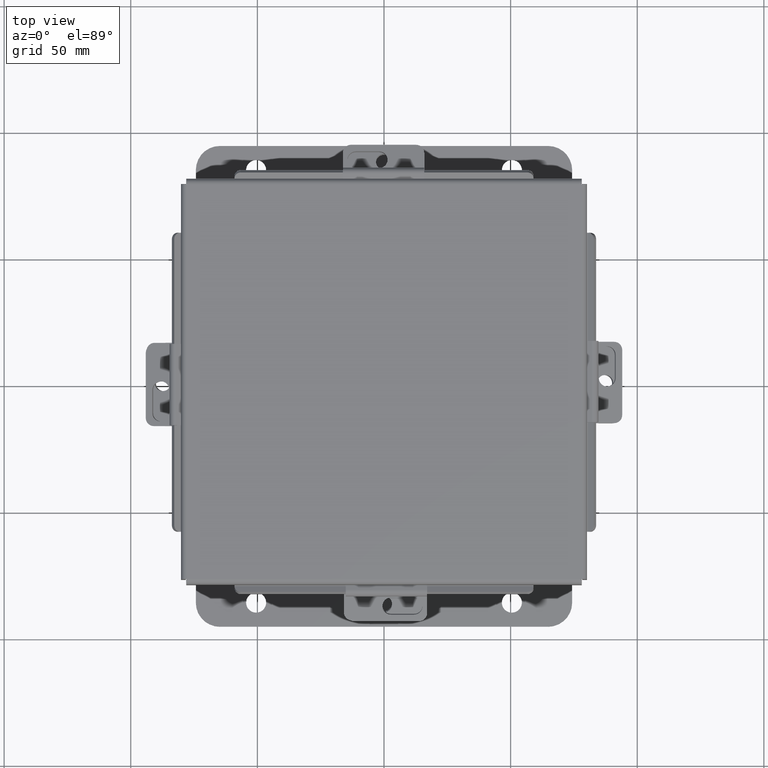
[diagram: clean part render]
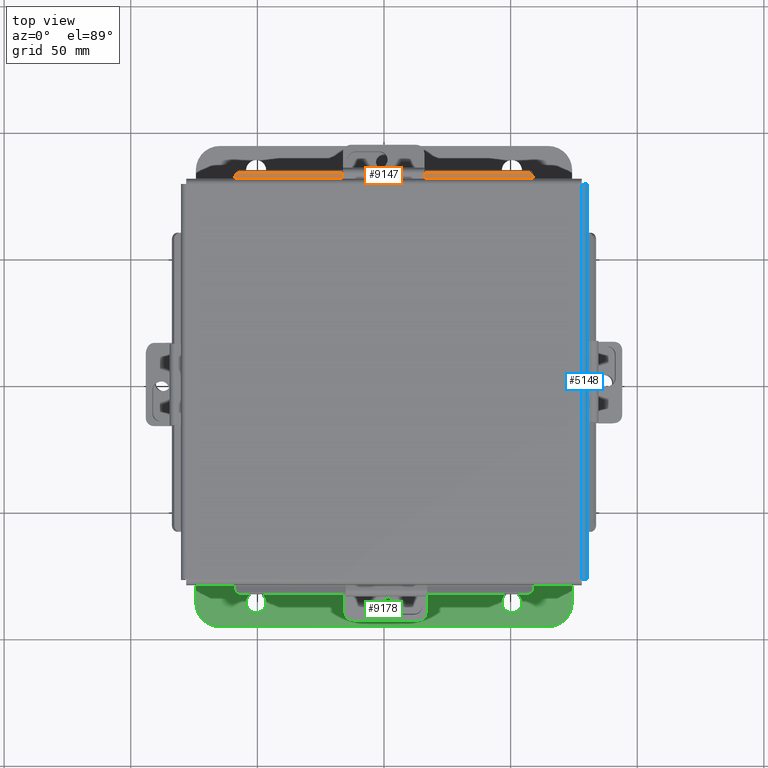
[diagram: same view with three faces highlighted in distinct colors, each labeled with its STEP entity id]
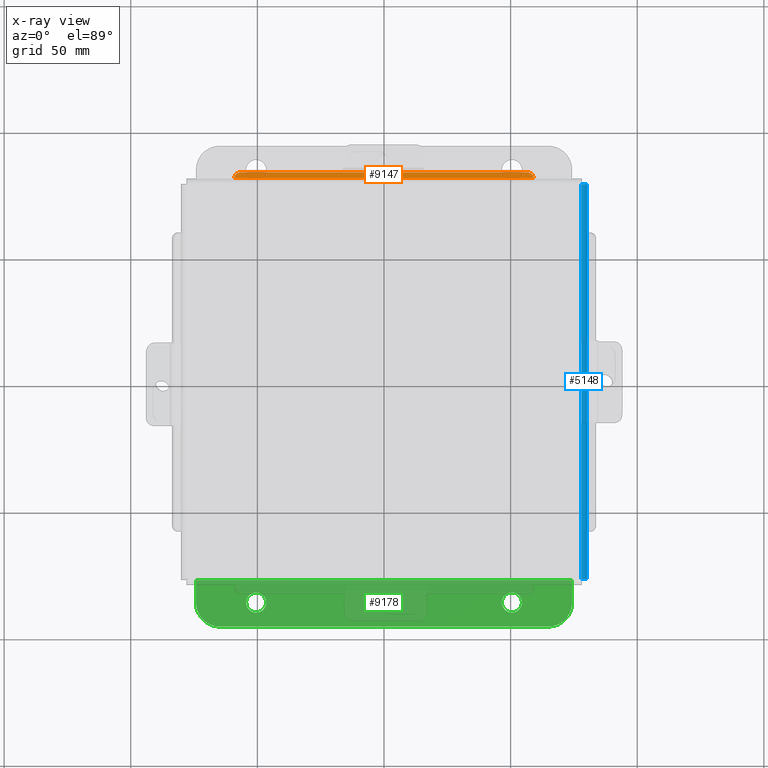
[diagram: x-ray of the same camera — body ghosted, the three highlighted faces saturated]
A machine part, top view with three faces highlighted in distinct colors.
The next image is the same camera in x-ray (body ghosted, the three faces saturated) — at least one of them is partly hidden behind the body in this view.
Their STEP definitions:

[orange] entity #9147 — the highlighted planar face has unit normal (-0, -0.5, 0.866).
#53 = LINE ( 'NONE', #1235, #7917 ) ;
#381 = VECTOR ( 'NONE', #2809, 39.37007874015748900 ) ;
#634 = ORIENTED_EDGE ( 'NONE', *, *, #4757, .F. ) ;
#860 = LINE ( 'NONE', #5837, #3163 ) ;
#1015 = CARTESIAN_POINT ( 'NONE',  ( -2.544671805411940700E-017, 1.000069589632083000, 1.732171340347319600 ) ) ;
#1133 = DIRECTION ( 'NONE',  ( 1.272247367479751900E-017, -0.5000000000000012200, -0.8660254037844379300 ) ) ;
#1235 = CARTESIAN_POINT ( 'NONE',  ( -2.324478932188136100, 3.260706350946111600, 0.4269920976626972500 ) ) ;
#1372 = AXIS2_PLACEMENT_3D ( 'NONE', #1015, #6924, #7681 ) ;
#1393 = ORIENTED_EDGE ( 'NONE', *, *, #2066, .F. ) ;
#1460 = ORIENTED_EDGE ( 'NONE', *, *, #8056, .T. ) ;
#1801 = CARTESIAN_POINT ( 'NONE',  ( 2.324478932188135200, 3.260706350946111600, 0.4269920976626973000 ) ) ;
#2013 = LINE ( 'NONE', #9194, #7453 ) ;
#2032 = ORIENTED_EDGE ( 'NONE', *, *, #6490, .T. ) ;
#2066 = EDGE_CURVE ( 'NONE', #5074, #3168, #53, .T. ) ;
#2151 = DIRECTION ( 'NONE',  ( 1.000000000000000000, -1.175251776144364900E-016, 1.175251776144364900E-016 ) ) ;
#2725 = DIRECTION ( 'NONE',  ( 0.0000000000000000000, 0.8660254037844372600, -0.5000000000000023300 ) ) ;
#2809 = DIRECTION ( 'NONE',  ( -0.0000000000000000000, 0.8660254037844373800, -0.5000000000000023300 ) ) ;
#2970 = DIRECTION ( 'NONE',  ( 1.272247367479751900E-017, -0.5000000000000012200, -0.8660254037844379300 ) ) ;
#3163 = VECTOR ( 'NONE', #7357, 39.37007874015748100 ) ;
#3168 = VERTEX_POINT ( 'NONE', #5859 ) ;
#3180 = VERTEX_POINT ( 'NONE', #5898 ) ;
#3241 = CARTESIAN_POINT ( 'NONE',  ( -2.324478932188136100, 3.174103810567667800, 0.4769920976626972300 ) ) ;
#3950 = CARTESIAN_POINT ( 'NONE',  ( 2.324478932188135200, 3.174103810567667800, 0.4769920976626974600 ) ) ;
#4489 = ORIENTED_EDGE ( 'NONE', *, *, #5218, .F. ) ;
#4625 = EDGE_CURVE ( 'NONE', #7758, #3180, #2013, .T. ) ;
#4757 = EDGE_CURVE ( 'NONE', #3180, #7295, #5810, .T. ) ;
#5074 = VERTEX_POINT ( 'NONE', #6643 ) ;
#5218 = EDGE_CURVE ( 'NONE', #8922, #7758, #860, .T. ) ;
#5226 = DIRECTION ( 'NONE',  ( 0.0000000000000000000, 0.8660254037844372600, -0.5000000000000023300 ) ) ;
#5370 = CARTESIAN_POINT ( 'NONE',  ( -2.324478932188135200, 3.169750000000001800, 0.4795057713659399100 ) ) ;
#5558 = CARTESIAN_POINT ( 'NONE',  ( 2.224478932188135100, 3.174103810567667800, 0.4769920976626972300 ) ) ;
#5797 = PLANE ( 'NONE',  #1372 ) ;
#5810 = LINE ( 'NONE', #1801, #381 ) ;
#5837 = CARTESIAN_POINT ( 'NONE',  ( -2.324478932188136100, 3.156250000000001800, 0.4872999999999999600 ) ) ;
#5859 = CARTESIAN_POINT ( 'NONE',  ( -2.224478932188136400, 3.260706350946111600, 0.4269920976626972500 ) ) ;
#5898 = CARTESIAN_POINT ( 'NONE',  ( 2.324478932188135200, 3.169750000000001800, 0.4795057713659399100 ) ) ;
#5933 = CARTESIAN_POINT ( 'NONE',  ( -2.224478932188136400, 3.174103810567667800, 0.4769920976626972300 ) ) ;
#6345 = FACE_OUTER_BOUND ( 'NONE', #9431, .T. ) ;
#6490 = EDGE_CURVE ( 'NONE', #5074, #7295, #6824, .T. ) ;
#6498 = AXIS2_PLACEMENT_3D ( 'NONE', #5558, #1133, #2725 ) ;
#6643 = CARTESIAN_POINT ( 'NONE',  ( 2.224478932188135100, 3.260706350946111600, 0.4269920976626973000 ) ) ;
#6765 = AXIS2_PLACEMENT_3D ( 'NONE', #5933, #2970, #5226 ) ;
#6824 = CIRCLE ( 'NONE', #6498, 0.09999999999999983900 ) ;
#6924 = DIRECTION ( 'NONE',  ( 1.272247367479751900E-017, -0.5000000000000012200, -0.8660254037844379300 ) ) ;
#7295 = VERTEX_POINT ( 'NONE', #3950 ) ;
#7357 = DIRECTION ( 'NONE',  ( -0.0000000000000000000, -0.8660254037844379300, 0.5000000000000012200 ) ) ;
#7360 = CIRCLE ( 'NONE', #6765, 0.09999999999999983900 ) ;
#7453 = VECTOR ( 'NONE', #2151, 39.37007874015748100 ) ;
#7681 = DIRECTION ( 'NONE',  ( 0.0000000000000000000, 0.8660254037844379300, -0.5000000000000012200 ) ) ;
#7758 = VERTEX_POINT ( 'NONE', #5370 ) ;
#7917 = VECTOR ( 'NONE', #9343, 39.37007874015748100 ) ;
#8056 = EDGE_CURVE ( 'NONE', #8922, #3168, #7360, .T. ) ;
#8922 = VERTEX_POINT ( 'NONE', #3241 ) ;
#9147 = ADVANCED_FACE ( 'NONE', ( #6345 ), #5797, .T. ) ;
#9194 = CARTESIAN_POINT ( 'NONE',  ( -2.324478932188136100, 3.169750000000001800, 0.4795057713659400300 ) ) ;
#9343 = DIRECTION ( 'NONE',  ( -1.000000000000000000, -0.0000000000000000000, -1.469064720180456100E-017 ) ) ;
#9431 = EDGE_LOOP ( 'NONE', ( #4489, #1460, #1393, #2032, #634, #9598 ) ) ;
#9598 = ORIENTED_EDGE ( 'NONE', *, *, #4625, .F. ) ;

[blue] entity #5148 — the highlighted cylindrical surface (edge-blend (fillet) strip) has radius 2.2276 mm, axis along (-0, -1, -0).
#173 = DIRECTION ( 'NONE',  ( -0.0000000000000000000, 1.000000000000000000, -0.0000000000000000000 ) ) ;
#192 = CARTESIAN_POINT ( 'NONE',  ( -3.156250000000000400, -3.074478932188135600, 0.01299999999999986400 ) ) ;
#310 = CARTESIAN_POINT ( 'NONE',  ( -3.112717384578527600, -3.070526310729379200, -0.06363106625866842000 ) ) ;
#343 = ORIENTED_EDGE ( 'NONE', *, *, #4305, .T. ) ;
#1138 = VERTEX_POINT ( 'NONE', #8745 ) ;
#1818 = CARTESIAN_POINT ( 'NONE',  ( -3.080029903154992700, 3.069044077682344400, -0.07469999999999994700 ) ) ;
#1950 = CARTESIAN_POINT ( 'NONE',  ( -3.112717384578527600, 3.070526310729377400, -0.06363106625866839200 ) ) ;
#1977 = CARTESIAN_POINT ( 'NONE',  ( -3.068550000000001000, 3.068549999999999700, -0.07469999999999994700 ) ) ;
#2257 = VERTEX_POINT ( 'NONE', #5304 ) ;
#2473 = CARTESIAN_POINT ( 'NONE',  ( -3.156250000000000400, 3.156249999999998700, 0.01299999999999986400 ) ) ;
#2508 = CARTESIAN_POINT ( 'NONE',  ( -3.145181066258668800, -3.072502621458757000, -0.03116738457852794700 ) ) ;
#2537 = LINE ( 'NONE', #6923, #4258 ) ;
#2829 = CARTESIAN_POINT ( 'NONE',  ( -3.156250000000000400, -3.074478932188135600, 0.01299999999999986400 ) ) ;
#3160 = ORIENTED_EDGE ( 'NONE', *, *, #9434, .F. ) ;
#3410 = AXIS2_PLACEMENT_3D ( 'NONE', #4528, #8988, #4501 ) ;
#3630 = VECTOR ( 'NONE', #173, 39.37007874015748100 ) ;
#3725 = CARTESIAN_POINT ( 'NONE',  ( -3.156250000000000400, 3.074478932188135600, 0.01299999999999985900 ) ) ;
#4004 = CARTESIAN_POINT ( 'NONE',  ( -3.122445747341800400, -3.071020388411722200, -0.05713078207832041800 ) ) ;
#4191 = CARTESIAN_POINT ( 'NONE',  ( -3.091505289458309900, 3.069538155364689200, -0.07241740374381124000 ) ) ;
#4258 = VECTOR ( 'NONE', #6487, 39.37007874015748100 ) ;
#4300 = CYLINDRICAL_SURFACE ( 'NONE', #3410, 0.08770000000000026400 ) ;
#4301 = CARTESIAN_POINT ( 'NONE',  ( -3.153967403743812300, 3.073490776823446500, -0.009955289458308985400 ) ) ;
#4305 = EDGE_CURVE ( 'NONE', #5547, #2257, #7315, .T. ) ;
#4501 = DIRECTION ( 'NONE',  ( -1.000000000000000000, 0.0000000000000000000, -3.358350761880586900E-015 ) ) ;
#4528 = CARTESIAN_POINT ( 'NONE',  ( -3.068550000000000100, -3.074478932188135600, 0.01300000000000015000 ) ) ;
#4720 = CARTESIAN_POINT ( 'NONE',  ( -3.091505289458308200, -3.069538155364688800, -0.07241740374381125400 ) ) ;
#4914 = CARTESIAN_POINT ( 'NONE',  ( -3.156250000000000000, -3.073984854505790800, 0.001520096845007165000 ) ) ;
#4972 = ORIENTED_EDGE ( 'NONE', *, *, #5462, .F. ) ;
#5148 = ADVANCED_FACE ( 'NONE', ( #7802 ), #4300, .T. ) ;
#5304 = CARTESIAN_POINT ( 'NONE',  ( -3.156250000000000400, 3.074478932188135600, 0.01299999999999985900 ) ) ;
#5374 = EDGE_LOOP ( 'NONE', ( #3160, #4972, #343, #6398 ) ) ;
#5462 = EDGE_CURVE ( 'NONE', #5547, #8795, #7980, .T. ) ;
#5481 = CARTESIAN_POINT ( 'NONE',  ( -3.068550000000000100, -3.068550000000000100, -0.07469999999999994700 ) ) ;
#5547 = VERTEX_POINT ( 'NONE', #192 ) ;
#5608 = CARTESIAN_POINT ( 'NONE',  ( -3.138680782078320700, 3.072008543776411300, -0.04089574734180008400 ) ) ;
#5675 = CARTESIAN_POINT ( 'NONE',  ( -3.122445747341799900, 3.071020388411723100, -0.05713078207832042500 ) ) ;
#5988 = CARTESIAN_POINT ( 'NONE',  ( -3.068550000000000100, -3.068550000000000100, -0.07469999999999994700 ) ) ;
#6089 = CARTESIAN_POINT ( 'NONE',  ( -3.153967403743811900, -3.073490776823447800, -0.009955289458308987100 ) ) ;
#6398 = ORIENTED_EDGE ( 'NONE', *, *, #7711, .F. ) ;
#6487 = DIRECTION ( 'NONE',  ( -0.0000000000000000000, 1.000000000000000000, -0.0000000000000000000 ) ) ;
#6923 = CARTESIAN_POINT ( 'NONE',  ( -3.068550000000000100, -3.074478932188135600, -0.07469999999999994700 ) ) ;
#6977 = B_SPLINE_CURVE_WITH_KNOTS ( 'NONE', 3,
 ( #1977, #1818, #4191, #1950, #5675, #5608, #9335, #4301, #8153, #3725 ),
 .UNSPECIFIED., .F., .F.,
 ( 4, 2, 2, 2, 4 ),
 ( 0.0000000000000000000, 0.2500000000000000000, 0.5000000000000000000, 0.7500000000000000000, 1.000000000000000000 ),
 .UNSPECIFIED. ) ;
#7315 = LINE ( 'NONE', #2473, #3630 ) ;
#7711 = EDGE_CURVE ( 'NONE', #1138, #2257, #6977, .T. ) ;
#7802 = FACE_OUTER_BOUND ( 'NONE', #5374, .T. ) ;
#7980 = B_SPLINE_CURVE_WITH_KNOTS ( 'NONE', 3,
 ( #2829, #4914, #6089, #2508, #8449, #4004, #310, #4720, #9205, #5481 ),
 .UNSPECIFIED., .F., .F.,
 ( 4, 2, 2, 2, 4 ),
 ( 0.0000000000000000000, 0.2500000000000000000, 0.5000000000000000000, 0.7500000000000000000, 1.000000000000000000 ),
 .UNSPECIFIED. ) ;
#8153 = CARTESIAN_POINT ( 'NONE',  ( -3.156250000000000400, 3.073984854505791300, 0.001520096845007165400 ) ) ;
#8449 = CARTESIAN_POINT ( 'NONE',  ( -3.138680782078320200, -3.072008543776413100, -0.04089574734180007700 ) ) ;
#8745 = CARTESIAN_POINT ( 'NONE',  ( -3.068550000000001000, 3.068549999999999700, -0.07469999999999994700 ) ) ;
#8795 = VERTEX_POINT ( 'NONE', #5988 ) ;
#8988 = DIRECTION ( 'NONE',  ( 0.0000000000000000000, -1.000000000000000000, 0.0000000000000000000 ) ) ;
#9205 = CARTESIAN_POINT ( 'NONE',  ( -3.080029903154992700, -3.069044077682344900, -0.07469999999999994700 ) ) ;
#9335 = CARTESIAN_POINT ( 'NONE',  ( -3.145181066258668800, 3.072502621458757000, -0.03116738457852795100 ) ) ;
#9434 = EDGE_CURVE ( 'NONE', #8795, #1138, #2537, .T. ) ;

[green] entity #9178 — the highlighted planar face has unit normal (0, -0, 1).
#35 = CARTESIAN_POINT ( 'NONE',  ( 2.925299999999999600, 0.7378000000000043400, -2.112300000000001600 ) ) ;
#102 = ORIENTED_EDGE ( 'NONE', *, *, #5512, .F. ) ;
#111 = CARTESIAN_POINT ( 'NONE',  ( 1.987799999999999100, 0.5188000000000048100, -2.112300000000000700 ) ) ;
#150 = ORIENTED_EDGE ( 'NONE', *, *, #6945, .T. ) ;
#375 = CARTESIAN_POINT ( 'NONE',  ( 0.0000000000000000000, -2.185478394931410600E-015, -2.112299999999999400 ) ) ;
#411 = DIRECTION ( 'NONE',  ( -1.555753819465285400E-061, 3.332425039709726500E-015, 1.000000000000000000 ) ) ;
#418 = VERTEX_POINT ( 'NONE', #6076 ) ;
#493 = AXIS2_PLACEMENT_3D ( 'NONE', #8783, #5587, #1162 ) ;
#533 = AXIS2_PLACEMENT_3D ( 'NONE', #375, #411, #1177 ) ;
#753 = AXIS2_PLACEMENT_3D ( 'NONE', #3509, #2014, #6433 ) ;
#962 = ORIENTED_EDGE ( 'NONE', *, *, #8487, .F. ) ;
#1162 = DIRECTION ( 'NONE',  ( 0.0000000000000000000, -1.000000000000000000, 3.502369222646487400E-015 ) ) ;
#1177 = DIRECTION ( 'NONE',  ( -3.994427860841588400E-031, -1.000000000000000000, 3.332425039709726500E-015 ) ) ;
#1439 = CARTESIAN_POINT ( 'NONE',  ( -1.987799999999997800, 0.3628000000000002900, -2.112299999999999800 ) ) ;
#1615 = LINE ( 'NONE', #35, #4231 ) ;
#1838 = CARTESIAN_POINT ( 'NONE',  ( 2.925299999999995100, 0.01300000000000447800, -2.112299999999999400 ) ) ;
#1974 = LINE ( 'NONE', #1838, #7526 ) ;
#2014 = DIRECTION ( 'NONE',  ( -0.0000000000000000000, -3.332425039709726500E-015, -1.000000000000000000 ) ) ;
#2094 = VERTEX_POINT ( 'NONE', #111 ) ;
#2129 = CARTESIAN_POINT ( 'NONE',  ( 2.925299999999995100, 0.01300000000000393200, -2.112299999999999400 ) ) ;
#2441 = FACE_BOUND ( 'NONE', #9292, .T. ) ;
#2507 = CIRCLE ( 'NONE', #4641, 0.1560000000000001700 ) ;
#2555 = LINE ( 'NONE', #4475, #6245 ) ;
#2650 = FACE_OUTER_BOUND ( 'NONE', #3947, .T. ) ;
#2723 = CARTESIAN_POINT ( 'NONE',  ( 2.550299999999999100, 0.3628000000000046700, -2.112300000000000300 ) ) ;
#2736 = CIRCLE ( 'NONE', #3870, 0.1560000000000001700 ) ;
#2923 = DIRECTION ( 'NONE',  ( 0.0000000000000000000, -1.000000000000000000, 3.502369222646487400E-015 ) ) ;
#2976 = DIRECTION ( 'NONE',  ( -0.0000000000000000000, -3.332425039709726500E-015, -1.000000000000000000 ) ) ;
#2989 = LINE ( 'NONE', #3516, #8946 ) ;
#3099 = EDGE_CURVE ( 'NONE', #5186, #8851, #9152, .T. ) ;
#3125 = CARTESIAN_POINT ( 'NONE',  ( -2.550299999999999100, 0.7378000000000005700, -2.112300000000001600 ) ) ;
#3210 = ORIENTED_EDGE ( 'NONE', *, *, #8352, .F. ) ;
#3236 = DIRECTION ( 'NONE',  ( 0.0000000000000000000, 3.332425039709726500E-015, 1.000000000000000000 ) ) ;
#3308 = PLANE ( 'NONE',  #533 ) ;
#3310 = DIRECTION ( 'NONE',  ( -1.000000000000000000, -4.910036603141682400E-031, 0.0000000000000000000 ) ) ;
#3361 = VERTEX_POINT ( 'NONE', #5725 ) ;
#3477 = DIRECTION ( 'NONE',  ( 0.0000000000000000000, 3.332425039709726500E-015, 1.000000000000000000 ) ) ;
#3509 = CARTESIAN_POINT ( 'NONE',  ( -1.987799999999997800, 0.3628000000000002900, -2.112299999999999800 ) ) ;
#3516 = CARTESIAN_POINT ( 'NONE',  ( -2.925300000000000500, 0.7378000000000005700, -2.112300000000001600 ) ) ;
#3717 = DIRECTION ( 'NONE',  ( 1.000000000000000000, 4.910036603141682400E-031, -0.0000000000000000000 ) ) ;
#3790 = CIRCLE ( 'NONE', #493, 0.1560000000000001700 ) ;
#3797 = DIRECTION ( 'NONE',  ( -3.994427860841574400E-031, -1.000000000000000000, 3.332425039709726500E-015 ) ) ;
#3870 = AXIS2_PLACEMENT_3D ( 'NONE', #7439, #2976, #8184 ) ;
#3947 = EDGE_LOOP ( 'NONE', ( #8472, #7511, #3210, #102, #962, #9055 ) ) ;
#4142 = VERTEX_POINT ( 'NONE', #3125 ) ;
#4231 = VECTOR ( 'NONE', #3717, 39.37007874015748100 ) ;
#4337 = EDGE_CURVE ( 'NONE', #4142, #8837, #6607, .T. ) ;
#4377 = FACE_BOUND ( 'NONE', #5801, .T. ) ;
#4475 = CARTESIAN_POINT ( 'NONE',  ( 2.925299999999995100, 4.370956789862821100E-015, -2.112299999999999400 ) ) ;
#4641 = AXIS2_PLACEMENT_3D ( 'NONE', #1439, #6500, #2923 ) ;
#4869 = ORIENTED_EDGE ( 'NONE', *, *, #5381, .T. ) ;
#4928 = VERTEX_POINT ( 'NONE', #2129 ) ;
#5186 = VERTEX_POINT ( 'NONE', #8756 ) ;
#5214 = ORIENTED_EDGE ( 'NONE', *, *, #7445, .T. ) ;
#5381 = EDGE_CURVE ( 'NONE', #9587, #2094, #2736, .T. ) ;
#5512 = EDGE_CURVE ( 'NONE', #4928, #3361, #1974, .T. ) ;
#5587 = DIRECTION ( 'NONE',  ( -0.0000000000000000000, -3.332425039709726500E-015, -1.000000000000000000 ) ) ;
#5632 = AXIS2_PLACEMENT_3D ( 'NONE', #2723, #3477, #8677 ) ;
#5725 = CARTESIAN_POINT ( 'NONE',  ( -2.925300000000004500, 0.01299999999999956100, -2.112299999999999400 ) ) ;
#5801 = EDGE_LOOP ( 'NONE', ( #5214, #4869 ) ) ;
#5914 = ORIENTED_EDGE ( 'NONE', *, *, #7372, .T. ) ;
#6076 = CARTESIAN_POINT ( 'NONE',  ( -1.987800000000000000, 0.5188000000000004800, -2.112300000000000700 ) ) ;
#6200 = CARTESIAN_POINT ( 'NONE',  ( -2.550299999999999100, 0.3628000000000002900, -2.112300000000000300 ) ) ;
#6245 = VECTOR ( 'NONE', #3797, 39.37007874015748100 ) ;
#6294 = VERTEX_POINT ( 'NONE', #8894 ) ;
#6433 = DIRECTION ( 'NONE',  ( 0.0000000000000000000, -1.000000000000000000, 3.502369222646487400E-015 ) ) ;
#6443 = DIRECTION ( 'NONE',  ( 3.994427860841574400E-031, 1.000000000000000000, -3.332425039709726500E-015 ) ) ;
#6500 = DIRECTION ( 'NONE',  ( -0.0000000000000000000, -3.332425039709726500E-015, -1.000000000000000000 ) ) ;
#6607 = CIRCLE ( 'NONE', #8214, 0.3750000000000000600 ) ;
#6608 = DIRECTION ( 'NONE',  ( 0.0000000000000000000, -1.000000000000000000, 3.642463991552350200E-015 ) ) ;
#6868 = CARTESIAN_POINT ( 'NONE',  ( -2.925300000000000500, 0.3628000000000002900, -2.112300000000000300 ) ) ;
#6945 = EDGE_CURVE ( 'NONE', #418, #6294, #8948, .T. ) ;
#7372 = EDGE_CURVE ( 'NONE', #6294, #418, #2507, .T. ) ;
#7439 = CARTESIAN_POINT ( 'NONE',  ( 1.987800000000001300, 0.3628000000000046700, -2.112299999999999800 ) ) ;
#7445 = EDGE_CURVE ( 'NONE', #2094, #9587, #3790, .T. ) ;
#7511 = ORIENTED_EDGE ( 'NONE', *, *, #4337, .T. ) ;
#7526 = VECTOR ( 'NONE', #3310, 39.37007874015748100 ) ;
#7562 = EDGE_CURVE ( 'NONE', #4142, #8851, #1615, .T. ) ;
#8184 = DIRECTION ( 'NONE',  ( 0.0000000000000000000, -1.000000000000000000, 3.502369222646487400E-015 ) ) ;
#8214 = AXIS2_PLACEMENT_3D ( 'NONE', #6200, #3236, #6608 ) ;
#8352 = EDGE_CURVE ( 'NONE', #3361, #8837, #2989, .T. ) ;
#8472 = ORIENTED_EDGE ( 'NONE', *, *, #7562, .F. ) ;
#8487 = EDGE_CURVE ( 'NONE', #5186, #4928, #2555, .T. ) ;
#8677 = DIRECTION ( 'NONE',  ( 0.0000000000000000000, -1.000000000000000000, 3.642463991552350200E-015 ) ) ;
#8756 = CARTESIAN_POINT ( 'NONE',  ( 2.925299999999999600, 0.3628000000000046700, -2.112300000000000300 ) ) ;
#8783 = CARTESIAN_POINT ( 'NONE',  ( 1.987800000000001300, 0.3628000000000046700, -2.112299999999999800 ) ) ;
#8837 = VERTEX_POINT ( 'NONE', #6868 ) ;
#8851 = VERTEX_POINT ( 'NONE', #9166 ) ;
#8894 = CARTESIAN_POINT ( 'NONE',  ( -1.987800000000000000, 0.2068000000000001200, -2.112299999999999400 ) ) ;
#8946 = VECTOR ( 'NONE', #6443, 39.37007874015748100 ) ;
#8948 = CIRCLE ( 'NONE', #753, 0.1560000000000001700 ) ;
#9055 = ORIENTED_EDGE ( 'NONE', *, *, #3099, .T. ) ;
#9152 = CIRCLE ( 'NONE', #5632, 0.3750000000000000600 ) ;
#9166 = CARTESIAN_POINT ( 'NONE',  ( 2.550299999999999100, 0.7378000000000043400, -2.112300000000001600 ) ) ;
#9178 = ADVANCED_FACE ( 'NONE', ( #2441, #4377, #2650 ), #3308, .T. ) ;
#9292 = EDGE_LOOP ( 'NONE', ( #150, #5914 ) ) ;
#9294 = CARTESIAN_POINT ( 'NONE',  ( 1.987799999999999100, 0.2068000000000045100, -2.112299999999999400 ) ) ;
#9587 = VERTEX_POINT ( 'NONE', #9294 ) ;